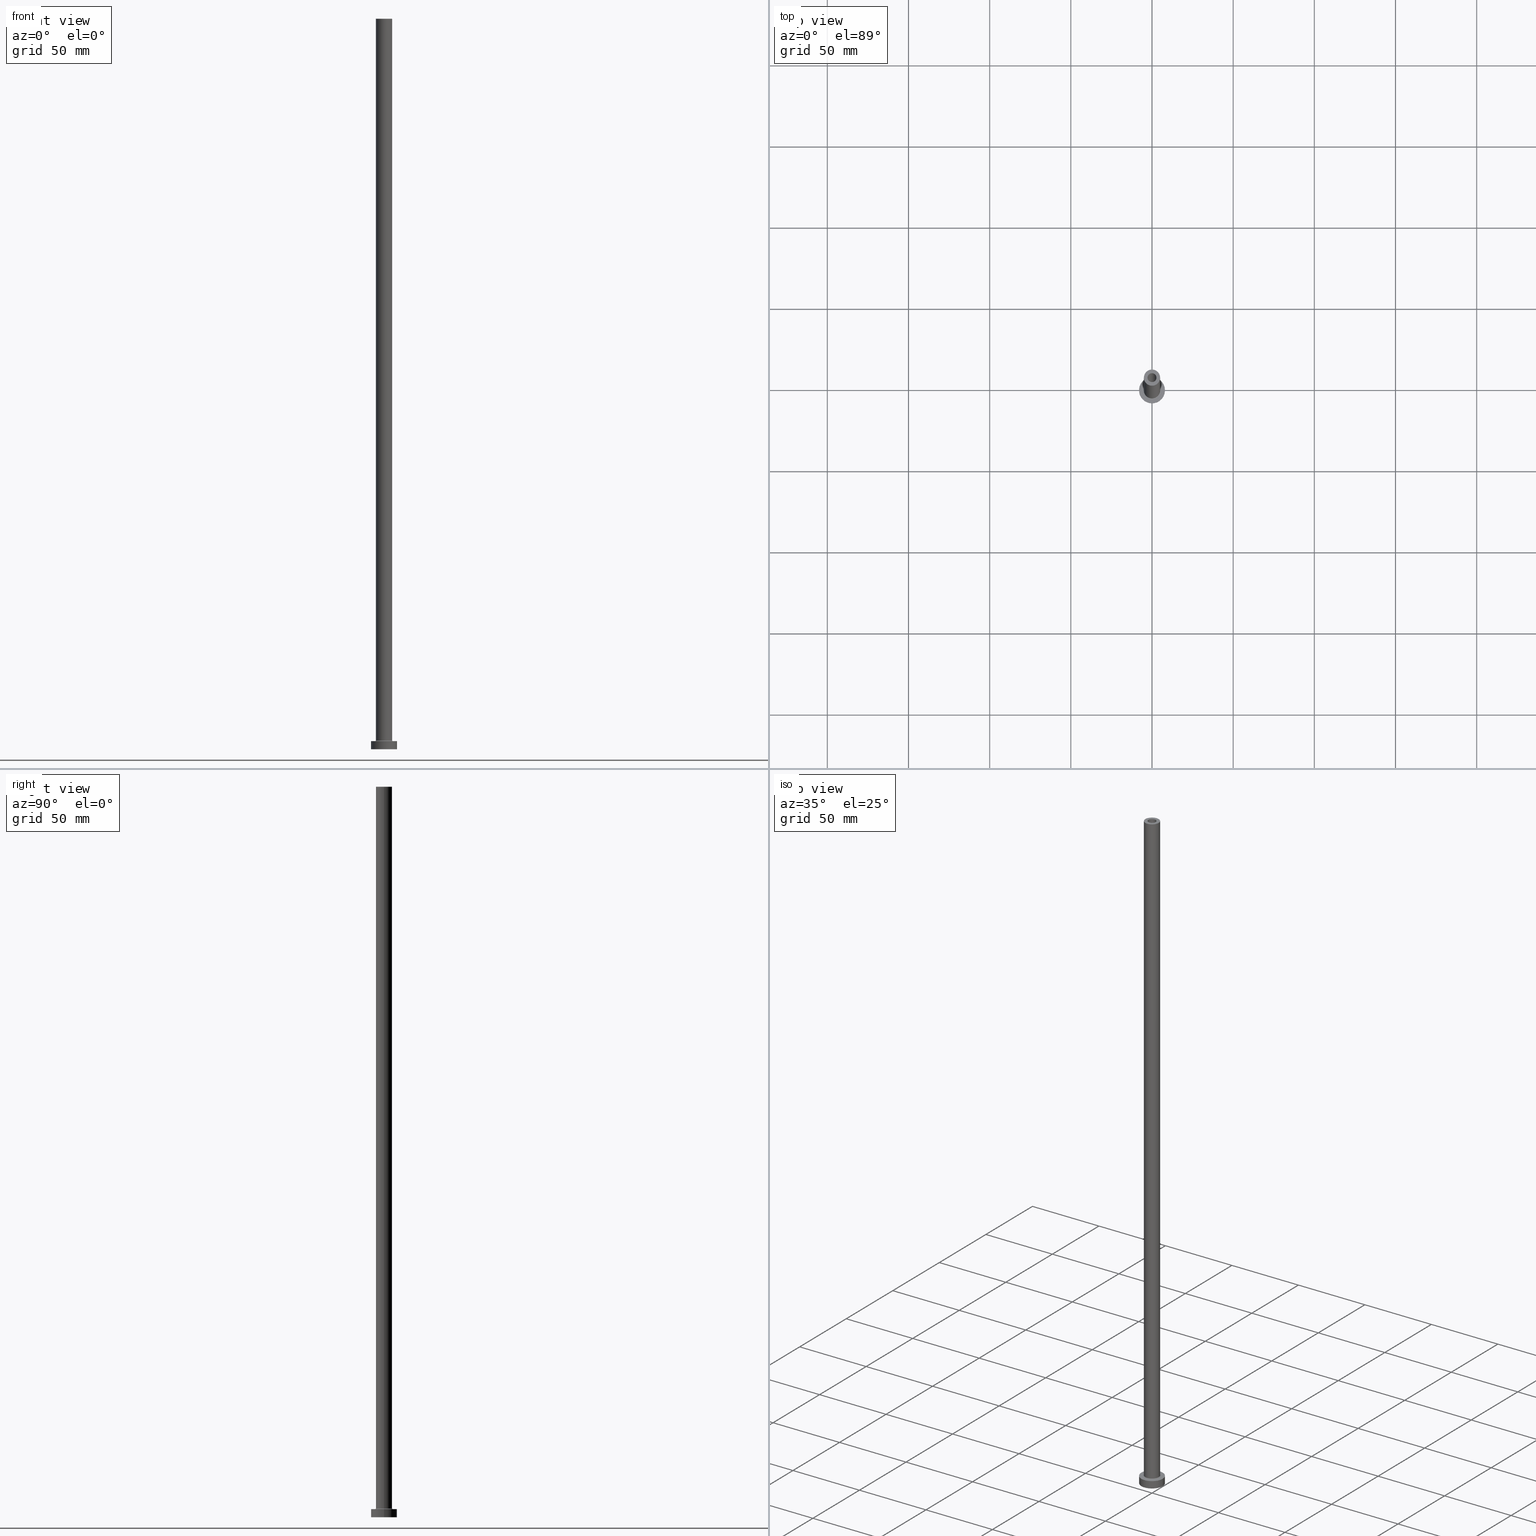
[diagram: canonical four-view strip — front | top / right | iso, engineering-drawing reading convention]
A machine part, canonical four-view strip (front | top / right | iso — engineering-drawing reading convention). The complete STEP part file that produces these views, byte-faithful:
ISO-10303-21;
HEADER;
FILE_DESCRIPTION (( 'STEP AP203' ),
    '1' );
FILE_NAME ('1b2c.STEP',
    '2023-02-13T16:12:39',
    ( '' ),
    ( '' ),
    'SwSTEP 2.0',
    'SolidWorks 2019',
    '' );
FILE_SCHEMA (( 'CONFIG_CONTROL_DESIGN' ));
ENDSEC;

DATA;
#1 = EDGE_LOOP ( 'NONE', ( #71, #222, #390, #123 ) ) ;
#2 = DIRECTION ( 'NONE',  ( 0.000000000000000000, -1.000000000000000000, 0.000000000000000000 ) ) ;
#3 = ORIENTED_EDGE ( 'NONE', *, *, #413, .F. ) ;
#4 = DIRECTION ( 'NONE',  ( -0.000000000000000000, -0.000000000000000000, -1.000000000000000000 ) ) ;
#5 = EDGE_CURVE ( 'NONE', #66, #356, #274, .T. ) ;
#6 = ORIENTED_EDGE ( 'NONE', *, *, #407, .T. ) ;
#7 = PERSON_AND_ORGANIZATION ( #68, #24 ) ;
#8 = EDGE_LOOP ( 'NONE', ( #50, #285 ) ) ;
#9 = ORIENTED_EDGE ( 'NONE', *, *, #96, .T. ) ;
#10 = CARTESIAN_POINT ( 'NONE',  ( 8.000000000000000000, 9.797174393178825657E-16, 5.000000000000000000 ) ) ;
#11 = ORIENTED_EDGE ( 'NONE', *, *, #96, .F. ) ;
#12 = VERTEX_POINT ( 'NONE', #113 ) ;
#13 = DIRECTION ( 'NONE',  ( 1.000000000000000000, 0.000000000000000000, -0.000000000000000000 ) ) ;
#14 = CIRCLE ( 'NONE', #110, 0.5000000000000004441 ) ;
#15 = EDGE_CURVE ( 'NONE', #331, #12, #323, .T. ) ;
#16 = CC_DESIGN_SECURITY_CLASSIFICATION ( #102, ( #352 ) ) ;
#17 = ORIENTED_EDGE ( 'NONE', *, *, #130, .F. ) ;
#18 = APPROVAL_ROLE ( '' ) ;
#19 = VERTEX_POINT ( 'NONE', #453 ) ;
#20 = ORIENTED_EDGE ( 'NONE', *, *, #278, .F. ) ;
#21 = APPROVAL_DATE_TIME ( #194, #372 ) ;
#22 = CARTESIAN_POINT ( 'NONE',  ( 2.899999999999999911, 3.551475717527323832E-16, 0.000000000000000000 ) ) ;
#23 = EDGE_CURVE ( 'NONE', #161, #196, #70, .T. ) ;
#24 = ORGANIZATION ( 'NEUR�EN�', 'NEUR�EN�', '' ) ;
#25 = DIRECTION ( 'NONE',  ( 1.000000000000000000, 0.000000000000000000, 0.000000000000000000 ) ) ;
#26 = DIRECTION ( 'NONE',  ( -1.000000000000000000, 0.000000000000000000, 0.000000000000000000 ) ) ;
#27 = CARTESIAN_POINT ( 'NONE',  ( 0.000000000000000000, 0.000000000000000000, 405.0000000000000000 ) ) ;
#28 = CC_DESIGN_PERSON_AND_ORGANIZATION_ASSIGNMENT ( #7, #155, ( #186 ) ) ;
#29 = CIRCLE ( 'NONE', #139, 2.750000000000000000 ) ;
#30 = CARTESIAN_POINT ( 'NONE',  ( -2.899999999999999911, 0.000000000000000000, 0.000000000000000000 ) ) ;
#31 = ORIENTED_EDGE ( 'NONE', *, *, #15, .F. ) ;
#32 = DIRECTION ( 'NONE',  ( 1.000000000000000000, 0.000000000000000000, 0.000000000000000000 ) ) ;
#33 = CIRCLE ( 'NONE', #107, 8.000000000000000000 ) ;
#34 = CARTESIAN_POINT ( 'NONE',  ( -5.500000000000000000, 6.735557395310442023E-16, 5.500000000000005329 ) ) ;
#35 = AXIS2_PLACEMENT_3D ( 'NONE', #286, #281, #353 ) ;
#36 = CC_DESIGN_APPROVAL ( #372, ( #102 ) ) ;
#37 = FACE_OUTER_BOUND ( 'NONE', #85, .T. ) ;
#38 = CARTESIAN_POINT ( 'NONE',  ( 0.000000000000000000, 0.000000000000000000, 5.000000000000000000 ) ) ;
#39 = FACE_BOUND ( 'NONE', #120, .T. ) ;
#40 = DIRECTION ( 'NONE',  ( 0.000000000000000000, 0.000000000000000000, -1.000000000000000000 ) ) ;
#41 = ORIENTED_EDGE ( 'NONE', *, *, #447, .T. ) ;
#42 = ORIENTED_EDGE ( 'NONE', *, *, #5, .T. ) ;
#43 = DIRECTION ( 'NONE',  ( 0.000000000000000000, 0.000000000000000000, 1.000000000000000000 ) ) ;
#44 = EDGE_CURVE ( 'NONE', #66, #290, #135, .T. ) ;
#45 = CIRCLE ( 'NONE', #296, 5.000000000000000000 ) ;
#46 = APPLICATION_PROTOCOL_DEFINITION ( 'international standard', 'config_control_design', 1994, #411 ) ;
#47 = DIRECTION ( 'NONE',  ( 0.000000000000000000, 0.000000000000000000, 1.000000000000000000 ) ) ;
#48 = AXIS2_PLACEMENT_3D ( 'NONE', #345, #376, #176 ) ;
#49 = LOCAL_TIME ( 17, 12, 39.00000000000000000, #302 ) ;
#50 = ORIENTED_EDGE ( 'NONE', *, *, #298, .F. ) ;
#51 = DATE_AND_TIME ( #118, #49 ) ;
#52 = CYLINDRICAL_SURFACE ( 'NONE', #422, 2.750000000000000000 ) ;
#53 = ADVANCED_FACE ( 'NONE', ( #289 ), #131, .F. ) ;
#54 = FACE_OUTER_BOUND ( 'NONE', #1, .T. ) ;
#55 = ORIENTED_EDGE ( 'NONE', *, *, #460, .T. ) ;
#56 = CARTESIAN_POINT ( 'NONE',  ( 0.000000000000000000, 0.000000000000000000, 5.000000000000000000 ) ) ;
#57 = AXIS2_PLACEMENT_3D ( 'NONE', #179, #210, #382 ) ;
#58 = DIRECTION ( 'NONE',  ( 0.000000000000000000, 0.000000000000000000, 1.000000000000000000 ) ) ;
#59 = ADVANCED_FACE ( 'NONE', ( #424, #414 ), #212, .T. ) ;
#60 = DIRECTION ( 'NONE',  ( -0.000000000000000000, -0.000000000000000000, -1.000000000000000000 ) ) ;
#61 = CIRCLE ( 'NONE', #306, 2.899999999999999911 ) ;
#62 = DIRECTION ( 'NONE',  ( 1.000000000000000000, 0.000000000000000000, 0.000000000000000000 ) ) ;
#63 = ORIENTED_EDGE ( 'NONE', *, *, #15, .T. ) ;
#64 = CARTESIAN_POINT ( 'NONE',  ( -2.750000000000000000, 0.000000000000000000, 405.0000000000000000 ) ) ;
#65 = DIRECTION ( 'NONE',  ( 1.000000000000000000, 0.000000000000000000, 0.000000000000000000 ) ) ;
#66 = VERTEX_POINT ( 'NONE', #82 ) ;
#67 =( NAMED_UNIT ( * ) PLANE_ANGLE_UNIT ( ) SI_UNIT ( $, .RADIAN. ) );
#68 = PERSON ( 'NEUR�EN�', 'NEUR�EN�', 'NEUR�EN�', ('NEUR�EN�'), ('NEUR�EN�'), ('NEUR�EN�') ) ;
#69 = AXIS2_PLACEMENT_3D ( 'NONE', #315, #137, #203 ) ;
#70 = LINE ( 'NONE', #216, #402 ) ;
#71 = ORIENTED_EDGE ( 'NONE', *, *, #298, .T. ) ;
#72 = PLANE ( 'NONE',  #362 ) ;
#73 = EDGE_CURVE ( 'NONE', #117, #161, #433, .T. ) ;
#74 = EDGE_LOOP ( 'NONE', ( #396, #363 ) ) ;
#75 = DIRECTION ( 'NONE',  ( 0.000000000000000000, 0.000000000000000000, 1.000000000000000000 ) ) ;
#76 = ORIENTED_EDGE ( 'NONE', *, *, #174, .T. ) ;
#77 = ORIENTED_EDGE ( 'NONE', *, *, #181, .T. ) ;
#78 = CC_DESIGN_APPROVAL ( #329, ( #186 ) ) ;
#79 = PLANE ( 'NONE',  #360 ) ;
#80 = PERSON_AND_ORGANIZATION ( #68, #24 ) ;
#81 = ADVANCED_FACE ( 'NONE', ( #189, #156 ), #79, .T. ) ;
#82 = CARTESIAN_POINT ( 'NONE',  ( 2.750000000000000000, 3.367778697655220519E-16, 450.0000000000000000 ) ) ;
#83 = ORIENTED_EDGE ( 'NONE', *, *, #283, .F. ) ;
#84 = APPROVAL_ROLE ( '' ) ;
#85 = EDGE_LOOP ( 'NONE', ( #147, #42, #330, #263 ) ) ;
#86 = APPROVAL_ROLE ( '' ) ;
#87 = EDGE_CURVE ( 'NONE', #161, #117, #33, .T. ) ;
#88 = CIRCLE ( 'NONE', #213, 5.500000000000000000 ) ;
#89 = PERSON_AND_ORGANIZATION ( #68, #24 ) ;
#90 = DIRECTION ( 'NONE',  ( -1.000000000000000000, 0.000000000000000000, 0.000000000000000000 ) ) ;
#91 = EDGE_LOOP ( 'NONE', ( #242, #76, #280, #255 ) ) ;
#92 = DIRECTION ( 'NONE',  ( 1.000000000000000000, 0.000000000000000000, 0.000000000000000000 ) ) ;
#93 = CARTESIAN_POINT ( 'NONE',  ( 0.000000000000000000, 0.000000000000000000, 450.0000000000000000 ) ) ;
#94 = LOCAL_TIME ( 17, 12, 39.00000000000000000, #191 ) ;
#95 = DESIGN_CONTEXT ( 'detailed design', #411, 'design' ) ;
#96 = EDGE_CURVE ( 'NONE', #429, #351, #45, .T. ) ;
#97 = CARTESIAN_POINT ( 'NONE',  ( -5.000000000000000000, 0.000000000000000000, 450.0000000000000000 ) ) ;
#98 = CARTESIAN_POINT ( 'NONE',  ( 0.000000000000000000, 0.000000000000000000, 5.500000000000005329 ) ) ;
#99 = CARTESIAN_POINT ( 'NONE',  ( 0.000000000000000000, 0.000000000000000000, 450.0000000000000000 ) ) ;
#100 = ADVANCED_FACE ( 'NONE', ( #54 ), #52, .F. ) ;
#101 = CIRCLE ( 'NONE', #48, 2.899999999999999911 ) ;
#102 = SECURITY_CLASSIFICATION ( '', '', #304 ) ;
#103 = CARTESIAN_POINT ( 'NONE',  ( -2.750000000000000000, 0.000000000000000000, 450.0000000000000000 ) ) ;
#104 = ORIENTED_EDGE ( 'NONE', *, *, #378, .T. ) ;
#105 = CARTESIAN_POINT ( 'NONE',  ( 0.000000000000000000, 0.000000000000000000, 413.2024386617640062 ) ) ;
#106 = CARTESIAN_POINT ( 'NONE',  ( 0.000000000000000000, 0.000000000000000000, 5.000000000000000000 ) ) ;
#107 = AXIS2_PLACEMENT_3D ( 'NONE', #442, #438, #235 ) ;
#108 = ORIENTED_EDGE ( 'NONE', *, *, #413, .T. ) ;
#109 = CARTESIAN_POINT ( 'NONE',  ( 2.899999999999999911, 3.551475717527323832E-16, 413.2024386617640062 ) ) ;
#110 = AXIS2_PLACEMENT_3D ( 'NONE', #145, #2, #178 ) ;
#111 = ADVANCED_FACE ( 'NONE', ( #195, #300 ), #369, .F. ) ;
#112 = LOCAL_TIME ( 17, 12, 39.00000000000000000, #233 ) ;
#113 = CARTESIAN_POINT ( 'NONE',  ( -5.500000000000000000, 6.735557395310442023E-16, 5.000000000000002665 ) ) ;
#114 = DIRECTION ( 'NONE',  ( -0.000000000000000000, -0.000000000000000000, -1.000000000000000000 ) ) ;
#115 = VERTEX_POINT ( 'NONE', #22 ) ;
#116 = EDGE_CURVE ( 'NONE', #19, #248, #166, .T. ) ;
#117 = VERTEX_POINT ( 'NONE', #10 ) ;
#118 = CALENDAR_DATE ( 2023, 13, 2 ) ;
#119 = AXIS2_PLACEMENT_3D ( 'NONE', #259, #385, #387 ) ;
#120 = EDGE_LOOP ( 'NONE', ( #154, #177 ) ) ;
#121 = PRODUCT_DEFINITION_SHAPE ( 'NONE', 'NONE',  #186 ) ;
#122 = CALENDAR_DATE ( 2023, 13, 2 ) ;
#123 = ORIENTED_EDGE ( 'NONE', *, *, #310, .F. ) ;
#124 = PERSON_AND_ORGANIZATION ( #68, #24 ) ;
#125 = CARTESIAN_POINT ( 'NONE',  ( 0.000000000000000000, 0.000000000000000000, 5.500000000000005329 ) ) ;
#126 = AXIS2_PLACEMENT_3D ( 'NONE', #56, #132, #412 ) ;
#127 = DIRECTION ( 'NONE',  ( 0.000000000000000000, 0.000000000000000000, -1.000000000000000000 ) ) ;
#128 = CARTESIAN_POINT ( 'NONE',  ( 0.000000000000000000, 0.000000000000000000, 5.500000000000005329 ) ) ;
#129 = ORIENTED_EDGE ( 'NONE', *, *, #420, .F. ) ;
#130 = EDGE_CURVE ( 'NONE', #117, #384, #297, .T. ) ;
#131 = TOROIDAL_SURFACE ( 'NONE', #457, 5.500000000000000000, 0.5000000000000000000 ) ;
#132 = DIRECTION ( 'NONE',  ( -0.000000000000000000, -0.000000000000000000, -1.000000000000000000 ) ) ;
#133 = AXIS2_PLACEMENT_3D ( 'NONE', #416, #58, #241 ) ;
#134 = DIRECTION ( 'NONE',  ( 0.000000000000000000, 0.000000000000000000, 1.000000000000000000 ) ) ;
#135 = LINE ( 'NONE', #257, #199 ) ;
#136 = EDGE_LOOP ( 'NONE', ( #338, #320 ) ) ;
#137 = DIRECTION ( 'NONE',  ( 0.000000000000000000, 0.000000000000000000, 1.000000000000000000 ) ) ;
#138 = CYLINDRICAL_SURFACE ( 'NONE', #346, 8.000000000000000000 ) ;
#139 = AXIS2_PLACEMENT_3D ( 'NONE', #311, #408, #25 ) ;
#140 = DIRECTION ( 'NONE',  ( 1.224646799147353207E-16, 1.000000000000000000, -0.000000000000000000 ) ) ;
#141 = ORIENTED_EDGE ( 'NONE', *, *, #130, .T. ) ;
#142 = CARTESIAN_POINT ( 'NONE',  ( 8.000000000000000000, 9.797174393178825657E-16, 0.000000000000000000 ) ) ;
#143 = EDGE_LOOP ( 'NONE', ( #129, #436, #151, #6 ) ) ;
#144 = CC_DESIGN_PERSON_AND_ORGANIZATION_ASSIGNMENT ( #158, #299, ( #335 ) ) ;
#145 = CARTESIAN_POINT ( 'NONE',  ( 5.500000000000000000, 0.000000000000000000, 5.500000000000005329 ) ) ;
#146 = DIRECTION ( 'NONE',  ( -0.000000000000000000, -0.000000000000000000, -1.000000000000000000 ) ) ;
#147 = ORIENTED_EDGE ( 'NONE', *, *, #44, .F. ) ;
#148 = DIRECTION ( 'NONE',  ( -1.000000000000000000, 0.000000000000000000, 0.000000000000000000 ) ) ;
#149 = AXIS2_PLACEMENT_3D ( 'NONE', #249, #75, #215 ) ;
#150 = ORIENTED_EDGE ( 'NONE', *, *, #447, .F. ) ;
#151 = ORIENTED_EDGE ( 'NONE', *, *, #116, .T. ) ;
#152 = PERSON_AND_ORGANIZATION ( #68, #24 ) ;
#153 = ORIENTED_EDGE ( 'NONE', *, *, #305, .T. ) ;
#154 = ORIENTED_EDGE ( 'NONE', *, *, #407, .F. ) ;
#155 = PERSON_AND_ORGANIZATION_ROLE ( 'creator' ) ;
#156 = FACE_OUTER_BOUND ( 'NONE', #136, .T. ) ;
#157 = AXIS2_PLACEMENT_3D ( 'NONE', #431, #172, #314 ) ;
#158 = PERSON_AND_ORGANIZATION ( #68, #24 ) ;
#159 = AXIS2_PLACEMENT_3D ( 'NONE', #105, #221, #427 ) ;
#160 = DIRECTION ( 'NONE',  ( -0.000000000000000000, -0.000000000000000000, -1.000000000000000000 ) ) ;
#161 = VERTEX_POINT ( 'NONE', #268 ) ;
#162 = MECHANICAL_CONTEXT ( 'NONE', #394, 'mechanical' ) ;
#163 = SHAPE_DEFINITION_REPRESENTATION ( #121, #254 ) ;
#164 = CC_DESIGN_DATE_AND_TIME_ASSIGNMENT ( #437, #370, ( #102 ) ) ;
#165 = ORIENTED_EDGE ( 'NONE', *, *, #258, .T. ) ;
#166 = LINE ( 'NONE', #307, #180 ) ;
#167 = AXIS2_PLACEMENT_3D ( 'NONE', #34, #140, #458 ) ;
#168 = CARTESIAN_POINT ( 'NONE',  ( 0.000000000000000000, 0.000000000000000000, 0.000000000000000000 ) ) ;
#169 = FACE_OUTER_BOUND ( 'NONE', #358, .T. ) ;
#170 = CLOSED_SHELL ( 'NONE', ( #100, #347, #53, #193, #211, #389, #59, #374, #336, #81, #343, #428, #111, #355 ) ) ;
#171 = DIRECTION ( 'NONE',  ( 1.000000000000000000, 0.000000000000000000, 0.000000000000000000 ) ) ;
#172 = DIRECTION ( 'NONE',  ( 0.000000000000000000, 0.000000000000000000, 1.000000000000000000 ) ) ;
#173 = CIRCLE ( 'NONE', #246, 5.000000000000000000 ) ;
#174 = EDGE_CURVE ( 'NONE', #325, #351, #400, .T. ) ;
#175 = DIRECTION ( 'NONE',  ( -0.000000000000000000, -0.000000000000000000, -1.000000000000000000 ) ) ;
#176 = DIRECTION ( 'NONE',  ( 1.000000000000000000, 0.000000000000000000, 0.000000000000000000 ) ) ;
#177 = ORIENTED_EDGE ( 'NONE', *, *, #267, .F. ) ;
#178 = DIRECTION ( 'NONE',  ( 0.000000000000000000, 0.000000000000000000, -1.000000000000000000 ) ) ;
#179 = CARTESIAN_POINT ( 'NONE',  ( 0.000000000000000000, 0.000000000000000000, 5.500000000000005329 ) ) ;
#180 = VECTOR ( 'NONE', #328, 1000.000000000000000 ) ;
#181 = EDGE_CURVE ( 'NONE', #384, #196, #340, .T. ) ;
#182 = DIRECTION ( 'NONE',  ( 0.000000000000000000, 0.000000000000000000, 1.000000000000000000 ) ) ;
#183 = CYLINDRICAL_SURFACE ( 'NONE', #159, 2.899999999999999911 ) ;
#184 = CIRCLE ( 'NONE', #119, 2.899999999999999911 ) ;
#185 = LINE ( 'NONE', #109, #435 ) ;
#186 = PRODUCT_DEFINITION ( 'NEZN�M�', '', #352, #95 ) ;
#187 = AXIS2_PLACEMENT_3D ( 'NONE', #93, #60, #406 ) ;
#188 = CARTESIAN_POINT ( 'NONE',  ( 0.000000000000000000, 0.000000000000000000, 0.000000000000000000 ) ) ;
#189 = FACE_BOUND ( 'NONE', #8, .T. ) ;
#190 = CALENDAR_DATE ( 2023, 13, 2 ) ;
#191 = COORDINATED_UNIVERSAL_TIME_OFFSET ( 1, 0, .AHEAD. ) ;
#192 = VECTOR ( 'NONE', #243, 1000.000000000000000 ) ;
#193 = ADVANCED_FACE ( 'NONE', ( #245 ), #204, .T. ) ;
#194 = DATE_AND_TIME ( #122, #112 ) ;
#195 = FACE_BOUND ( 'NONE', #217, .T. ) ;
#196 = VERTEX_POINT ( 'NONE', #342 ) ;
#197 = DIRECTION ( 'NONE',  ( 1.000000000000000000, 0.000000000000000000, 0.000000000000000000 ) ) ;
#198 = CARTESIAN_POINT ( 'NONE',  ( 0.000000000000000000, 0.000000000000000000, 405.0000000000000000 ) ) ;
#199 = VECTOR ( 'NONE', #354, 1000.000000000000000 ) ;
#200 = UNCERTAINTY_MEASURE_WITH_UNIT (LENGTH_MEASURE( 1.000000000000000082E-05 ), #381, 'distance_accuracy_value', 'NONE');
#201 = DIRECTION ( 'NONE',  ( -0.000000000000000000, -0.000000000000000000, -1.000000000000000000 ) ) ;
#202 = CIRCLE ( 'NONE', #383, 2.750000000000000000 ) ;
#203 = DIRECTION ( 'NONE',  ( 1.000000000000000000, 0.000000000000000000, 0.000000000000000000 ) ) ;
#204 = CYLINDRICAL_SURFACE ( 'NONE', #187, 5.000000000000000000 ) ;
#205 = CARTESIAN_POINT ( 'NONE',  ( -2.750000000000000000, 0.000000000000000000, 450.0000000000000000 ) ) ;
#206 = CIRCLE ( 'NONE', #167, 0.5000000000000004441 ) ;
#207 = CARTESIAN_POINT ( 'NONE',  ( 5.000000000000000000, 6.123233995736766282E-16, 450.0000000000000000 ) ) ;
#208 = EDGE_LOOP ( 'NONE', ( #432, #20 ) ) ;
#209 = CARTESIAN_POINT ( 'NONE',  ( 0.000000000000000000, 0.000000000000000000, 450.0000000000000000 ) ) ;
#210 = DIRECTION ( 'NONE',  ( 0.000000000000000000, 0.000000000000000000, 1.000000000000000000 ) ) ;
#211 = ADVANCED_FACE ( 'NONE', ( #449 ), #344, .T. ) ;
#212 = PLANE ( 'NONE',  #262 ) ;
#213 = AXIS2_PLACEMENT_3D ( 'NONE', #359, #4, #349 ) ;
#214 = VERTEX_POINT ( 'NONE', #448 ) ;
#215 = DIRECTION ( 'NONE',  ( 1.000000000000000000, 0.000000000000000000, 0.000000000000000000 ) ) ;
#216 = CARTESIAN_POINT ( 'NONE',  ( -8.000000000000000000, 0.000000000000000000, 5.000000000000000000 ) ) ;
#217 = EDGE_LOOP ( 'NONE', ( #397, #251 ) ) ;
#218 = DIRECTION ( 'NONE',  ( 1.000000000000000000, 0.000000000000000000, -0.000000000000000000 ) ) ;
#219 = EDGE_CURVE ( 'NONE', #290, #439, #29, .T. ) ;
#220 = ORIENTED_EDGE ( 'NONE', *, *, #181, .F. ) ;
#221 = DIRECTION ( 'NONE',  ( 0.000000000000000000, 0.000000000000000000, -1.000000000000000000 ) ) ;
#222 = ORIENTED_EDGE ( 'NONE', *, *, #44, .T. ) ;
#223 =( GEOMETRIC_REPRESENTATION_CONTEXT ( 3 ) GLOBAL_UNCERTAINTY_ASSIGNED_CONTEXT ( ( #200 ) ) GLOBAL_UNIT_ASSIGNED_CONTEXT ( ( #381, #67, #392 ) ) REPRESENTATION_CONTEXT ( 'NONE', 'WORKASPACE' ) );
#224 = APPLICATION_PROTOCOL_DEFINITION ( 'international standard', 'config_control_design', 1994, #394 ) ;
#225 = CARTESIAN_POINT ( 'NONE',  ( 0.000000000000000000, 0.000000000000000000, 450.0000000000000000 ) ) ;
#226 = PERSON_AND_ORGANIZATION_ROLE ( 'design_supplier' ) ;
#227 = CARTESIAN_POINT ( 'NONE',  ( 8.000000000000000000, 9.797174393178825657E-16, 5.000000000000000000 ) ) ;
#228 = VERTEX_POINT ( 'NONE', #348 ) ;
#229 = APPROVAL_STATUS ( 'not_yet_approved' ) ;
#230 = DIRECTION ( 'NONE',  ( 1.000000000000000000, 0.000000000000000000, 0.000000000000000000 ) ) ;
#231 = EDGE_CURVE ( 'NONE', #439, #290, #446, .T. ) ;
#232 = ORIENTED_EDGE ( 'NONE', *, *, #378, .F. ) ;
#233 = COORDINATED_UNIVERSAL_TIME_OFFSET ( 1, 0, .AHEAD. ) ;
#234 = TOROIDAL_SURFACE ( 'NONE', #57, 5.500000000000000000, 0.5000000000000000000 ) ;
#235 = DIRECTION ( 'NONE',  ( 1.000000000000000000, 0.000000000000000000, 0.000000000000000000 ) ) ;
#236 = FACE_OUTER_BOUND ( 'NONE', #301, .T. ) ;
#237 = AXIS2_PLACEMENT_3D ( 'NONE', #106, #253, #319 ) ;
#238 = DIRECTION ( 'NONE',  ( 1.000000000000000000, 0.000000000000000000, 0.000000000000000000 ) ) ;
#239 = CC_DESIGN_APPROVAL ( #403, ( #352 ) ) ;
#240 = VECTOR ( 'NONE', #160, 1000.000000000000000 ) ;
#241 = DIRECTION ( 'NONE',  ( 1.000000000000000000, 0.000000000000000000, 0.000000000000000000 ) ) ;
#242 = ORIENTED_EDGE ( 'NONE', *, *, #454, .F. ) ;
#243 = DIRECTION ( 'NONE',  ( -0.000000000000000000, -0.000000000000000000, -1.000000000000000000 ) ) ;
#244 = CC_DESIGN_PERSON_AND_ORGANIZATION_ASSIGNMENT ( #368, #440, ( #102 ) ) ;
#245 = FACE_OUTER_BOUND ( 'NONE', #91, .T. ) ;
#246 = AXIS2_PLACEMENT_3D ( 'NONE', #379, #456, #62 ) ;
#247 = CYLINDRICAL_SURFACE ( 'NONE', #35, 2.899999999999999911 ) ;
#248 = VERTEX_POINT ( 'NONE', #30 ) ;
#249 = CARTESIAN_POINT ( 'NONE',  ( 0.000000000000000000, 0.000000000000000000, 0.000000000000000000 ) ) ;
#250 = DIRECTION ( 'NONE',  ( 0.000000000000000000, 0.000000000000000000, 1.000000000000000000 ) ) ;
#251 = ORIENTED_EDGE ( 'NONE', *, *, #219, .T. ) ;
#252 = DIRECTION ( 'NONE',  ( 0.000000000000000000, 0.000000000000000000, 1.000000000000000000 ) ) ;
#253 = DIRECTION ( 'NONE',  ( -0.000000000000000000, -0.000000000000000000, -1.000000000000000000 ) ) ;
#254 = ADVANCED_BREP_SHAPE_REPRESENTATION ( '1b2c', ( #277, #418 ), #223 ) ;
#255 = ORIENTED_EDGE ( 'NONE', *, *, #305, .F. ) ;
#256 = FACE_OUTER_BOUND ( 'NONE', #284, .T. ) ;
#257 = CARTESIAN_POINT ( 'NONE',  ( 2.750000000000000000, 3.367778697655220519E-16, 450.0000000000000000 ) ) ;
#258 = EDGE_CURVE ( 'NONE', #19, #214, #101, .T. ) ;
#259 = CARTESIAN_POINT ( 'NONE',  ( 0.000000000000000000, 0.000000000000000000, 0.000000000000000000 ) ) ;
#260 = ORIENTED_EDGE ( 'NONE', *, *, #23, .T. ) ;
#261 = EDGE_LOOP ( 'NONE', ( #63, #104 ) ) ;
#262 = AXIS2_PLACEMENT_3D ( 'NONE', #38, #182, #386 ) ;
#263 = ORIENTED_EDGE ( 'NONE', *, *, #219, .F. ) ;
#264 = AXIS2_PLACEMENT_3D ( 'NONE', #128, #452, #92 ) ;
#265 = APPROVAL_DATE_TIME ( #51, #403 ) ;
#266 = ORIENTED_EDGE ( 'NONE', *, *, #174, .F. ) ;
#267 = EDGE_CURVE ( 'NONE', #115, #248, #61, .T. ) ;
#268 = CARTESIAN_POINT ( 'NONE',  ( -8.000000000000000000, 0.000000000000000000, 5.000000000000000000 ) ) ;
#269 = COORDINATED_UNIVERSAL_TIME_OFFSET ( 1, 0, .AHEAD. ) ;
#270 = CARTESIAN_POINT ( 'NONE',  ( 0.000000000000000000, 0.000000000000000000, 450.0000000000000000 ) ) ;
#271 = EDGE_LOOP ( 'NONE', ( #165, #361, #287, #444 ) ) ;
#272 = CARTESIAN_POINT ( 'NONE',  ( 5.500000000000000000, 0.000000000000000000, 5.000000000000002665 ) ) ;
#273 = CARTESIAN_POINT ( 'NONE',  ( 0.000000000000000000, 0.000000000000000000, 450.0000000000000000 ) ) ;
#274 = CIRCLE ( 'NONE', #157, 2.750000000000000000 ) ;
#275 = DIRECTION ( 'NONE',  ( 0.000000000000000000, 0.000000000000000000, -1.000000000000000000 ) ) ;
#276 = APPROVAL_PERSON_ORGANIZATION ( #89, #403, #18 ) ;
#277 = MANIFOLD_SOLID_BREP ( 'Odebrat vysunut�m4', #170 ) ;
#278 = EDGE_CURVE ( 'NONE', #214, #19, #459, .T. ) ;
#279 = DIRECTION ( 'NONE',  ( 1.000000000000000000, 0.000000000000000000, 0.000000000000000000 ) ) ;
#280 = ORIENTED_EDGE ( 'NONE', *, *, #283, .T. ) ;
#281 = DIRECTION ( 'NONE',  ( 0.000000000000000000, 0.000000000000000000, -1.000000000000000000 ) ) ;
#282 = LOCAL_TIME ( 17, 12, 39.00000000000000000, #295 ) ;
#283 = EDGE_CURVE ( 'NONE', #351, #429, #312, .T. ) ;
#284 = EDGE_LOOP ( 'NONE', ( #17, #294, #260, #108 ) ) ;
#285 = ORIENTED_EDGE ( 'NONE', *, *, #5, .F. ) ;
#286 = CARTESIAN_POINT ( 'NONE',  ( 0.000000000000000000, 0.000000000000000000, 413.2024386617640062 ) ) ;
#287 = ORIENTED_EDGE ( 'NONE', *, *, #267, .T. ) ;
#288 = AXIS2_PLACEMENT_3D ( 'NONE', #339, #393, #230 ) ;
#289 = FACE_OUTER_BOUND ( 'NONE', #293, .T. ) ;
#290 = VERTEX_POINT ( 'NONE', #455 ) ;
#291 = FACE_OUTER_BOUND ( 'NONE', #271, .T. ) ;
#292 = PRODUCT_RELATED_PRODUCT_CATEGORY ( 'detail', '', ( #335 ) ) ;
#293 = EDGE_LOOP ( 'NONE', ( #11, #55, #31, #150 ) ) ;
#294 = ORIENTED_EDGE ( 'NONE', *, *, #87, .F. ) ;
#295 = COORDINATED_UNIVERSAL_TIME_OFFSET ( 1, 0, .AHEAD. ) ;
#296 = AXIS2_PLACEMENT_3D ( 'NONE', #125, #405, #303 ) ;
#297 = LINE ( 'NONE', #227, #240 ) ;
#298 = EDGE_CURVE ( 'NONE', #356, #66, #202, .T. ) ;
#299 = PERSON_AND_ORGANIZATION_ROLE ( 'design_owner' ) ;
#300 = FACE_OUTER_BOUND ( 'NONE', #208, .T. ) ;
#301 = EDGE_LOOP ( 'NONE', ( #266, #388, #153, #9 ) ) ;
#302 = COORDINATED_UNIVERSAL_TIME_OFFSET ( 1, 0, .AHEAD. ) ;
#303 = DIRECTION ( 'NONE',  ( 1.000000000000000000, 0.000000000000000000, 0.000000000000000000 ) ) ;
#304 = SECURITY_CLASSIFICATION_LEVEL ( 'unclassified' ) ;
#305 = EDGE_CURVE ( 'NONE', #228, #429, #316, .T. ) ;
#306 = AXIS2_PLACEMENT_3D ( 'NONE', #168, #175, #238 ) ;
#307 = CARTESIAN_POINT ( 'NONE',  ( -2.899999999999999911, 0.000000000000000000, 413.2024386617640062 ) ) ;
#308 = LINE ( 'NONE', #205, #450 ) ;
#309 = AXIS2_PLACEMENT_3D ( 'NONE', #198, #337, #13 ) ;
#310 = EDGE_CURVE ( 'NONE', #356, #439, #308, .T. ) ;
#311 = CARTESIAN_POINT ( 'NONE',  ( 0.000000000000000000, 0.000000000000000000, 405.0000000000000000 ) ) ;
#312 = CIRCLE ( 'NONE', #264, 5.000000000000000000 ) ;
#313 = APPROVAL_PERSON_ORGANIZATION ( #152, #372, #86 ) ;
#314 = DIRECTION ( 'NONE',  ( 1.000000000000000000, 0.000000000000000000, 0.000000000000000000 ) ) ;
#315 = CARTESIAN_POINT ( 'NONE',  ( 0.000000000000000000, 0.000000000000000000, 405.0000000000000000 ) ) ;
#316 = LINE ( 'NONE', #97, #192 ) ;
#317 = EDGE_CURVE ( 'NONE', #228, #325, #173, .T. ) ;
#318 = CYLINDRICAL_SURFACE ( 'NONE', #371, 2.750000000000000000 ) ;
#319 = DIRECTION ( 'NONE',  ( 1.000000000000000000, 0.000000000000000000, 0.000000000000000000 ) ) ;
#320 = ORIENTED_EDGE ( 'NONE', *, *, #454, .T. ) ;
#321 = CC_DESIGN_PERSON_AND_ORGANIZATION_ASSIGNMENT ( #124, #398, ( #352 ) ) ;
#322 = DIRECTION ( 'NONE',  ( -1.000000000000000000, 0.000000000000000000, 0.000000000000000000 ) ) ;
#323 = CIRCLE ( 'NONE', #237, 5.500000000000000000 ) ;
#324 = APPROVAL_PERSON_ORGANIZATION ( #399, #329, #84 ) ;
#325 = VERTEX_POINT ( 'NONE', #207 ) ;
#326 = DIRECTION ( 'NONE',  ( 0.000000000000000000, 0.000000000000000000, 1.000000000000000000 ) ) ;
#327 = ORIENTED_EDGE ( 'NONE', *, *, #460, .F. ) ;
#328 = DIRECTION ( 'NONE',  ( 0.000000000000000000, 0.000000000000000000, -1.000000000000000000 ) ) ;
#329 = APPROVAL ( #365, 'NEUR�EN�' ) ;
#330 = ORIENTED_EDGE ( 'NONE', *, *, #310, .T. ) ;
#331 = VERTEX_POINT ( 'NONE', #272 ) ;
#332 = DATE_AND_TIME ( #434, #282 ) ;
#333 = VECTOR ( 'NONE', #410, 1000.000000000000000 ) ;
#334 = DATE_TIME_ROLE ( 'creation_date' ) ;
#335 = PRODUCT ( '1b2c', '1b2c', '', ( #162 ) ) ;
#336 = ADVANCED_FACE ( 'NONE', ( #236 ), #375, .T. ) ;
#337 = DIRECTION ( 'NONE',  ( 0.000000000000000000, 0.000000000000000000, 1.000000000000000000 ) ) ;
#338 = ORIENTED_EDGE ( 'NONE', *, *, #317, .T. ) ;
#339 = CARTESIAN_POINT ( 'NONE',  ( 0.000000000000000000, 0.000000000000000000, 5.000000000000000000 ) ) ;
#340 = CIRCLE ( 'NONE', #133, 8.000000000000000000 ) ;
#341 = CARTESIAN_POINT ( 'NONE',  ( 5.000000000000000000, 6.123233995736766282E-16, 450.0000000000000000 ) ) ;
#342 = CARTESIAN_POINT ( 'NONE',  ( -8.000000000000000000, 0.000000000000000000, 0.000000000000000000 ) ) ;
#343 = ADVANCED_FACE ( 'NONE', ( #169 ), #234, .F. ) ;
#344 = CYLINDRICAL_SURFACE ( 'NONE', #126, 8.000000000000000000 ) ;
#345 = CARTESIAN_POINT ( 'NONE',  ( 0.000000000000000000, 0.000000000000000000, 405.0000000000000000 ) ) ;
#346 = AXIS2_PLACEMENT_3D ( 'NONE', #380, #114, #148 ) ;
#347 = ADVANCED_FACE ( 'NONE', ( #291 ), #183, .F. ) ;
#348 = CARTESIAN_POINT ( 'NONE',  ( -5.000000000000000000, 0.000000000000000000, 450.0000000000000000 ) ) ;
#349 = DIRECTION ( 'NONE',  ( 1.000000000000000000, 0.000000000000000000, 0.000000000000000000 ) ) ;
#350 = FACE_OUTER_BOUND ( 'NONE', #364, .T. ) ;
#351 = VERTEX_POINT ( 'NONE', #417 ) ;
#352 = PRODUCT_DEFINITION_FORMATION_WITH_SPECIFIED_SOURCE ( 'LIBOVOLN�', '', #335, .NOT_KNOWN. ) ;
#353 = DIRECTION ( 'NONE',  ( -1.000000000000000000, 0.000000000000000000, 0.000000000000000000 ) ) ;
#354 = DIRECTION ( 'NONE',  ( 0.000000000000000000, 0.000000000000000000, -1.000000000000000000 ) ) ;
#355 = ADVANCED_FACE ( 'NONE', ( #37 ), #318, .F. ) ;
#356 = VERTEX_POINT ( 'NONE', #103 ) ;
#357 = CARTESIAN_POINT ( 'NONE',  ( 0.000000000000000000, 0.000000000000000000, 450.0000000000000000 ) ) ;
#358 = EDGE_LOOP ( 'NONE', ( #327, #83, #41, #232 ) ) ;
#359 = CARTESIAN_POINT ( 'NONE',  ( 0.000000000000000000, 0.000000000000000000, 5.000000000000000000 ) ) ;
#360 = AXIS2_PLACEMENT_3D ( 'NONE', #225, #47, #367 ) ;
#361 = ORIENTED_EDGE ( 'NONE', *, *, #420, .T. ) ;
#362 = AXIS2_PLACEMENT_3D ( 'NONE', #423, #252, #218 ) ;
#363 = ORIENTED_EDGE ( 'NONE', *, *, #73, .T. ) ;
#364 = EDGE_LOOP ( 'NONE', ( #3, #220 ) ) ;
#365 = APPROVAL_STATUS ( 'not_yet_approved' ) ;
#366 = CC_DESIGN_PERSON_AND_ORGANIZATION_ASSIGNMENT ( #80, #226, ( #352 ) ) ;
#367 = DIRECTION ( 'NONE',  ( 1.000000000000000000, 0.000000000000000000, -0.000000000000000000 ) ) ;
#368 = PERSON_AND_ORGANIZATION ( #68, #24 ) ;
#369 = PLANE ( 'NONE',  #309 ) ;
#370 = DATE_TIME_ROLE ( 'classification_date' ) ;
#371 = AXIS2_PLACEMENT_3D ( 'NONE', #357, #40, #322 ) ;
#372 = APPROVAL ( #401, 'NEUR�EN�' ) ;
#373 = CALENDAR_DATE ( 2023, 13, 2 ) ;
#374 = ADVANCED_FACE ( 'NONE', ( #39, #350 ), #72, .F. ) ;
#375 = CYLINDRICAL_SURFACE ( 'NONE', #409, 5.000000000000000000 ) ;
#376 = DIRECTION ( 'NONE',  ( 0.000000000000000000, 0.000000000000000000, 1.000000000000000000 ) ) ;
#377 = DIRECTION ( 'NONE',  ( 0.000000000000000000, 0.000000000000000000, 1.000000000000000000 ) ) ;
#378 = EDGE_CURVE ( 'NONE', #12, #331, #88, .T. ) ;
#379 = CARTESIAN_POINT ( 'NONE',  ( 0.000000000000000000, 0.000000000000000000, 450.0000000000000000 ) ) ;
#380 = CARTESIAN_POINT ( 'NONE',  ( 0.000000000000000000, 0.000000000000000000, 5.000000000000000000 ) ) ;
#381 =( LENGTH_UNIT ( ) NAMED_UNIT ( * ) SI_UNIT ( .MILLI., .METRE. ) );
#382 = DIRECTION ( 'NONE',  ( 1.000000000000000000, 0.000000000000000000, 0.000000000000000000 ) ) ;
#383 = AXIS2_PLACEMENT_3D ( 'NONE', #99, #134, #279 ) ;
#384 = VERTEX_POINT ( 'NONE', #142 ) ;
#385 = DIRECTION ( 'NONE',  ( -0.000000000000000000, -0.000000000000000000, -1.000000000000000000 ) ) ;
#386 = DIRECTION ( 'NONE',  ( 1.000000000000000000, 0.000000000000000000, -0.000000000000000000 ) ) ;
#387 = DIRECTION ( 'NONE',  ( 1.000000000000000000, 0.000000000000000000, 0.000000000000000000 ) ) ;
#388 = ORIENTED_EDGE ( 'NONE', *, *, #317, .F. ) ;
#389 = ADVANCED_FACE ( 'NONE', ( #256 ), #138, .T. ) ;
#390 = ORIENTED_EDGE ( 'NONE', *, *, #231, .F. ) ;
#391 = ORIENTED_EDGE ( 'NONE', *, *, #23, .F. ) ;
#392 =( NAMED_UNIT ( * ) SI_UNIT ( $, .STERADIAN. ) SOLID_ANGLE_UNIT ( ) );
#393 = DIRECTION ( 'NONE',  ( 0.000000000000000000, 0.000000000000000000, 1.000000000000000000 ) ) ;
#394 = APPLICATION_CONTEXT ( 'configuration controlled 3d designs of mechanical parts and assemblies' ) ;
#395 = AXIS2_PLACEMENT_3D ( 'NONE', #27, #377, #171 ) ;
#396 = ORIENTED_EDGE ( 'NONE', *, *, #87, .T. ) ;
#397 = ORIENTED_EDGE ( 'NONE', *, *, #231, .T. ) ;
#398 = PERSON_AND_ORGANIZATION_ROLE ( 'creator' ) ;
#399 = PERSON_AND_ORGANIZATION ( #68, #24 ) ;
#400 = LINE ( 'NONE', #341, #333 ) ;
#401 = APPROVAL_STATUS ( 'not_yet_approved' ) ;
#402 = VECTOR ( 'NONE', #146, 1000.000000000000000 ) ;
#403 = APPROVAL ( #229, 'NEUR�EN�' ) ;
#404 = AXIS2_PLACEMENT_3D ( 'NONE', #209, #326, #32 ) ;
#405 = DIRECTION ( 'NONE',  ( 0.000000000000000000, 0.000000000000000000, 1.000000000000000000 ) ) ;
#406 = DIRECTION ( 'NONE',  ( -1.000000000000000000, 0.000000000000000000, 0.000000000000000000 ) ) ;
#407 = EDGE_CURVE ( 'NONE', #248, #115, #184, .T. ) ;
#408 = DIRECTION ( 'NONE',  ( 0.000000000000000000, 0.000000000000000000, 1.000000000000000000 ) ) ;
#409 = AXIS2_PLACEMENT_3D ( 'NONE', #273, #201, #26 ) ;
#410 = DIRECTION ( 'NONE',  ( -0.000000000000000000, -0.000000000000000000, -1.000000000000000000 ) ) ;
#411 = APPLICATION_CONTEXT ( 'configuration controlled 3d designs of mechanical parts and assemblies' ) ;
#412 = DIRECTION ( 'NONE',  ( -1.000000000000000000, 0.000000000000000000, 0.000000000000000000 ) ) ;
#413 = EDGE_CURVE ( 'NONE', #196, #384, #425, .T. ) ;
#414 = FACE_OUTER_BOUND ( 'NONE', #74, .T. ) ;
#415 = ORIENTED_EDGE ( 'NONE', *, *, #73, .F. ) ;
#416 = CARTESIAN_POINT ( 'NONE',  ( 0.000000000000000000, 0.000000000000000000, 0.000000000000000000 ) ) ;
#417 = CARTESIAN_POINT ( 'NONE',  ( 5.000000000000000000, 6.123233995736766282E-16, 5.500000000000005329 ) ) ;
#418 = AXIS2_PLACEMENT_3D ( 'NONE', #188, #43, #197 ) ;
#419 = DIRECTION ( 'NONE',  ( 0.000000000000000000, 0.000000000000000000, -1.000000000000000000 ) ) ;
#420 = EDGE_CURVE ( 'NONE', #214, #115, #185, .T. ) ;
#421 = CARTESIAN_POINT ( 'NONE',  ( -5.000000000000000000, 0.000000000000000000, 5.500000000000005329 ) ) ;
#422 = AXIS2_PLACEMENT_3D ( 'NONE', #270, #127, #90 ) ;
#423 = CARTESIAN_POINT ( 'NONE',  ( 0.000000000000000000, 0.000000000000000000, 0.000000000000000000 ) ) ;
#424 = FACE_BOUND ( 'NONE', #261, .T. ) ;
#425 = CIRCLE ( 'NONE', #149, 8.000000000000000000 ) ;
#426 = EDGE_LOOP ( 'NONE', ( #415, #141, #77, #391 ) ) ;
#427 = DIRECTION ( 'NONE',  ( -1.000000000000000000, 0.000000000000000000, 0.000000000000000000 ) ) ;
#428 = ADVANCED_FACE ( 'NONE', ( #461 ), #247, .F. ) ;
#429 = VERTEX_POINT ( 'NONE', #421 ) ;
#430 = APPROVAL_DATE_TIME ( #332, #329 ) ;
#431 = CARTESIAN_POINT ( 'NONE',  ( 0.000000000000000000, 0.000000000000000000, 450.0000000000000000 ) ) ;
#432 = ORIENTED_EDGE ( 'NONE', *, *, #258, .F. ) ;
#433 = CIRCLE ( 'NONE', #288, 8.000000000000000000 ) ;
#434 = CALENDAR_DATE ( 2023, 13, 2 ) ;
#435 = VECTOR ( 'NONE', #419, 1000.000000000000000 ) ;
#436 = ORIENTED_EDGE ( 'NONE', *, *, #278, .T. ) ;
#437 = DATE_AND_TIME ( #373, #451 ) ;
#438 = DIRECTION ( 'NONE',  ( 0.000000000000000000, 0.000000000000000000, 1.000000000000000000 ) ) ;
#439 = VERTEX_POINT ( 'NONE', #64 ) ;
#440 = PERSON_AND_ORGANIZATION_ROLE ( 'classification_officer' ) ;
#441 = CC_DESIGN_DATE_AND_TIME_ASSIGNMENT ( #443, #334, ( #186 ) ) ;
#442 = CARTESIAN_POINT ( 'NONE',  ( 0.000000000000000000, 0.000000000000000000, 5.000000000000000000 ) ) ;
#443 = DATE_AND_TIME ( #190, #94 ) ;
#444 = ORIENTED_EDGE ( 'NONE', *, *, #116, .F. ) ;
#445 = CIRCLE ( 'NONE', #404, 5.000000000000000000 ) ;
#446 = CIRCLE ( 'NONE', #395, 2.750000000000000000 ) ;
#447 = EDGE_CURVE ( 'NONE', #351, #331, #14, .T. ) ;
#448 = CARTESIAN_POINT ( 'NONE',  ( 2.899999999999999911, 3.551475717527323832E-16, 405.0000000000000000 ) ) ;
#449 = FACE_OUTER_BOUND ( 'NONE', #426, .T. ) ;
#450 = VECTOR ( 'NONE', #275, 1000.000000000000000 ) ;
#451 = LOCAL_TIME ( 17, 12, 39.00000000000000000, #269 ) ;
#452 = DIRECTION ( 'NONE',  ( 0.000000000000000000, 0.000000000000000000, 1.000000000000000000 ) ) ;
#453 = CARTESIAN_POINT ( 'NONE',  ( -2.899999999999999911, 0.000000000000000000, 405.0000000000000000 ) ) ;
#454 = EDGE_CURVE ( 'NONE', #325, #228, #445, .T. ) ;
#455 = CARTESIAN_POINT ( 'NONE',  ( 2.750000000000000000, 3.367778697655220519E-16, 405.0000000000000000 ) ) ;
#456 = DIRECTION ( 'NONE',  ( 0.000000000000000000, 0.000000000000000000, 1.000000000000000000 ) ) ;
#457 = AXIS2_PLACEMENT_3D ( 'NONE', #98, #250, #65 ) ;
#458 = DIRECTION ( 'NONE',  ( -1.000000000000000000, 1.224646799147351482E-16, 0.000000000000000000 ) ) ;
#459 = CIRCLE ( 'NONE', #69, 2.899999999999999911 ) ;
#460 = EDGE_CURVE ( 'NONE', #429, #12, #206, .T. ) ;
#461 = FACE_OUTER_BOUND ( 'NONE', #143, .T. ) ;
ENDSEC;
END-ISO-10303-21;
